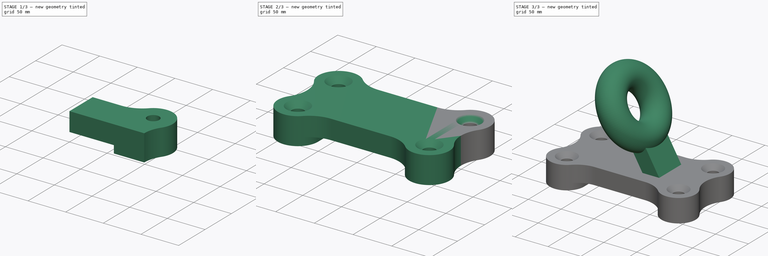
[diagram: build sequence overview — one tinted view per stage of 3, left to right]
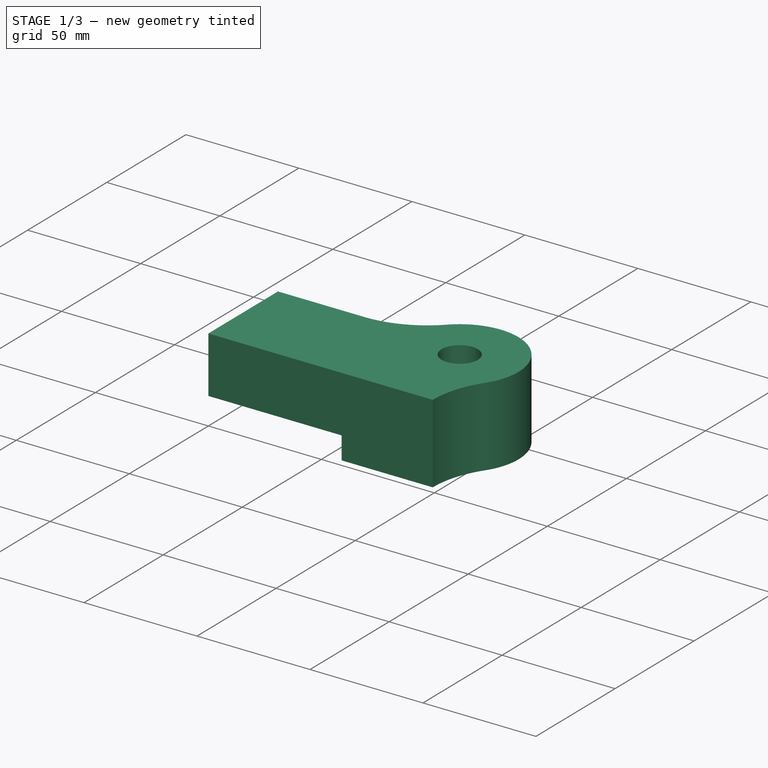
[diagram: stage 1 of 3 — iso view after this stage's code; geometry added in this stage tinted green]
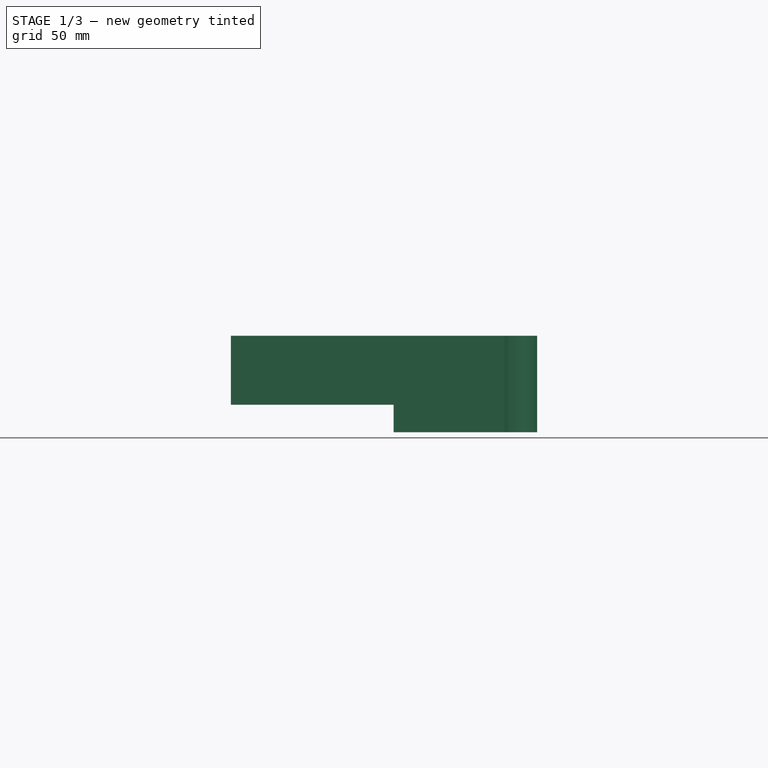
[diagram: stage 1 of 3 — front view after this stage's code; geometry added in this stage tinted green]
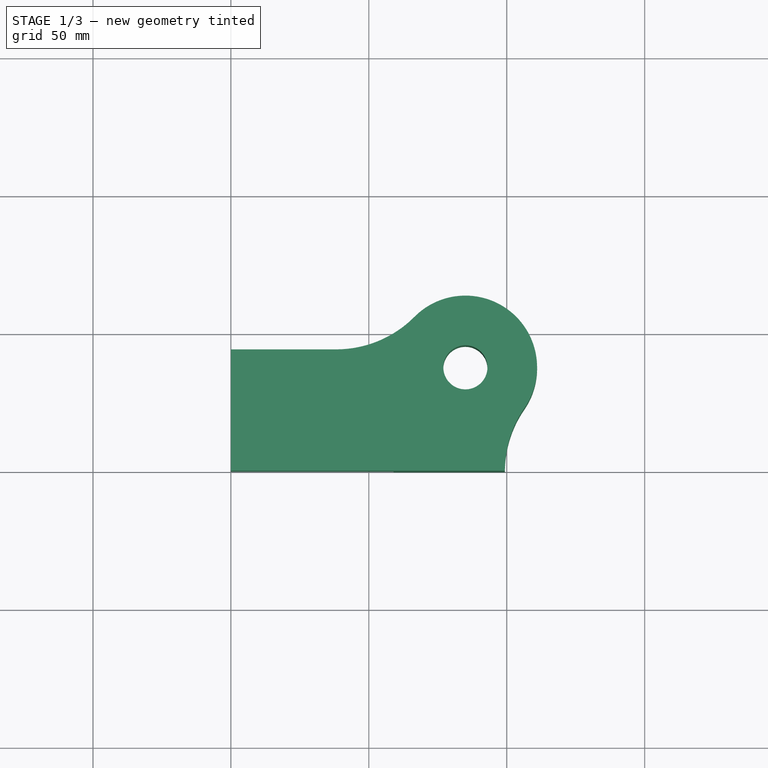
[diagram: stage 1 of 3 — top view after this stage's code; geometry added in this stage tinted green]
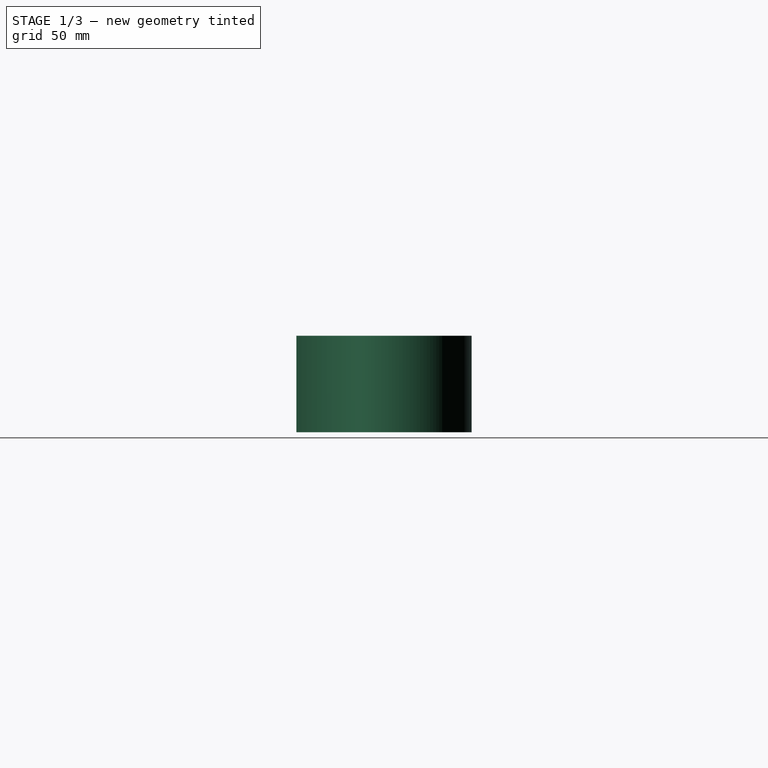
[diagram: stage 1 of 3 — right view after this stage's code; geometry added in this stage tinted green]
FCSTD DOCUMENT  (FreeCAD 1.1R42180 (Git))
Label: 24WC-15-Anchor_Ring
License: Creative Commons Attribution-NonCommercial-ShareAlike 4.0
LicenseURL: https://creativecommons.org/licenses/by-nc-sa/4.0/
objects: Sketcher::SketchObject×5, PartDesign::Pad×2, PartDesign::Mirrored×2, App::Point×1, PartDesign::Pocket×1, PartDesign::MultiTransform×1, PartDesign::Hole×1, PartDesign::Revolution×1, PartDesign::Body×1, App::TextDocument×1
note: 32 computed .brp shape members not serialized (recipe doc carries the construction recipe); baked Part::Feature solids carry a one-line shape summary decoded from their .brp

FEATURE [App::Point] Origin001  label="Origine"
  Role = Origin
FEATURE [Sketcher::SketchObject] Sketch
  ArcFitTolerance = 1e-06
  AttachmentSupport = -> [Origin]
  ExternalTypes = [0]
  FullyConstrained = true
  MakeInternals = false
  MapMode = 5
  expr: Constraints[5] = 170 / 2
  expr: Constraints[6] = 75 / 2
  sketch-geometry (7):
    g0: ArcOfCircle CenterX=139.312 CenterY=0 CenterZ=0 NormalX=0 NormalY=0 NormalZ=1 AngleXU=0 Radius=40 StartAngle=2.5373 EndAngle=3.14159
    g1: ArcOfCircle CenterX=85 CenterY=37.5 CenterZ=0 NormalX=0 NormalY=0 NormalZ=1 AngleXU=0 Radius=26 StartAngle=5.67889 EndAngle=8.643
    g2: ArcOfCircle CenterX=38.1625 CenterY=84 CenterZ=0 NormalX=0 NormalY=0 NormalZ=1 AngleXU=0 Radius=40 StartAngle=4.71239 EndAngle=5.5014
    g3: LineSegment StartX=38.1625 StartY=44 StartZ=0 EndX=0 EndY=44 EndZ=0
    g4: Circle CenterX=85 CenterY=37.5 CenterZ=0 NormalX=0 NormalY=0 NormalZ=1 AngleXU=0 Radius=8
    g5: LineSegment StartX=0 StartY=44 StartZ=0 EndX=0 EndY=0 EndZ=0
    g6: LineSegment StartX=0 StartY=0 StartZ=0 EndX=99.3116 EndY=0 EndZ=0
  constraints (19):
    c: PointOnObject(g0,g-1)
    c: Tangent(g0,g1) = 1.5708
    c: Tangent(g1,g2) = 1.5708
    c: Tangent(g2,g3) = 1.5708
    c: Horizontal(g3)
    c: Distance(g1,g-2) = 85
    c: Distance(g1,g-1) = 37.5
    c: Radius(g1) = 26
    c: Diameter(g4) = 16
    c: Coincident(g4,g1)
    c: Radius(g0) = 40
    c: Equal(g0,g2)
    c: Coincident(g3,g5)
    c: Coincident(g5,g-1)
    c: Vertical(g5)
    c: Coincident(g5,g6)
    c: Coincident(g6,g0)
    c: DistanceY(g5,g5) = 44
    c: Perpendicular(g0,g6)
FEATURE [PartDesign::Pad] Pad
  Direction = (0,0,1)
  Length = 35
  Length2 = 10
  Profile = -> Sketch
  ReferenceAxis = -> Sketch [N_Axis]
  Refine = true
  Suppressed = false
  Type = 0
FEATURE [Sketcher::SketchObject] Sketch001
  ArcFitTolerance = 1e-06
  ExternalGeometry = -> [Pad]
  ExternalTypes = [0,0]
  FullyConstrained = false
  MakeInternals = false
  MapMode = 5
  Placement = pos=(0,0,-7.9e-15) rot=(1,0,0;3.14159rad)
  sketch-geometry (8):
    g0: LineSegment StartX=59 StartY=0 StartZ=0 EndX=59 EndY=-37.5 EndZ=0
    g1: ArcOfCircle CenterX=85 CenterY=-37.5 CenterZ=0 NormalX=0 NormalY=0 NormalZ=1 AngleXU=0 Radius=26 StartAngle=3.14159 EndAngle=6.88748
    g2: ArcOfCircle CenterX=139.312 CenterY=0 CenterZ=0 NormalX=0 NormalY=0 NormalZ=1 AngleXU=0 Radius=40 StartAngle=3.14159 EndAngle=3.74589
    g3: LineSegment StartX=99.3116 StartY=3.779e-13 StartZ=0 EndX=59 EndY=0 EndZ=0
    g4: LineSegment StartX=-35.6688 StartY=30.5975 StartZ=0 EndX=-35.6688 EndY=-116.783 EndZ=0
    g5: LineSegment StartX=-35.6688 StartY=-116.783 StartZ=0 EndX=193.5 EndY=-116.783 EndZ=0
    g6: LineSegment StartX=193.5 StartY=-116.783 StartZ=0 EndX=193.5 EndY=30.5975 EndZ=0
    g7: LineSegment StartX=193.5 StartY=30.5975 StartZ=0 EndX=-35.6688 EndY=30.5975 EndZ=0
  constraints (17):
    c: PointOnObject(g0,g-1)
    c: Vertical(g0)
    c: Tangent(g0,g1) = -1.5708
    c: Tangent(g1,g2) = 1.5708
    c: Coincident(g2,g3)
    c: Coincident(g3,g0)
    c: Coincident(g2,g-3)
    c: Coincident(g1,g-4)
    c: Coincident(g2,g-3)
    c: Coincident(g4,g5)
    c: Coincident(g5,g6)
    c: Coincident(g6,g7)
    c: Coincident(g7,g4)
    c: Vertical(g4)
    c: Vertical(g6)
    c: Horizontal(g5)
    c: Horizontal(g7)
FEATURE [PartDesign::Pocket] Pocket
  BaseFeature = -> Pad
  Direction = (0,0,1)
  Length = 10
  Length2 = 5
  Profile = -> Sketch001
  ReferenceAxis = -> Sketch001 [N_Axis]
  Refine = true
  Suppressed = false
  Type = 0
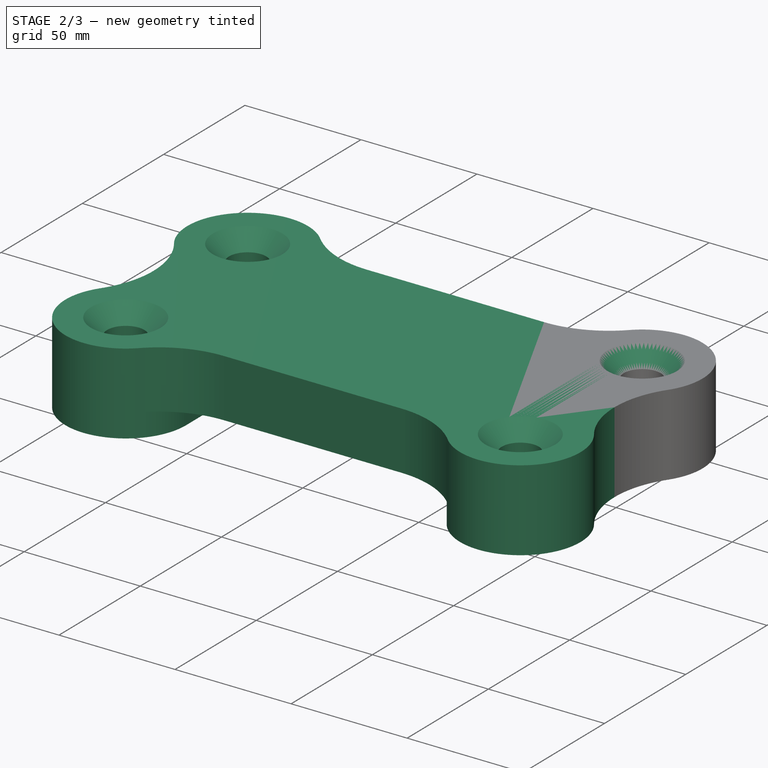
[diagram: stage 2 of 3 — iso view after this stage's code; geometry added in this stage tinted green]
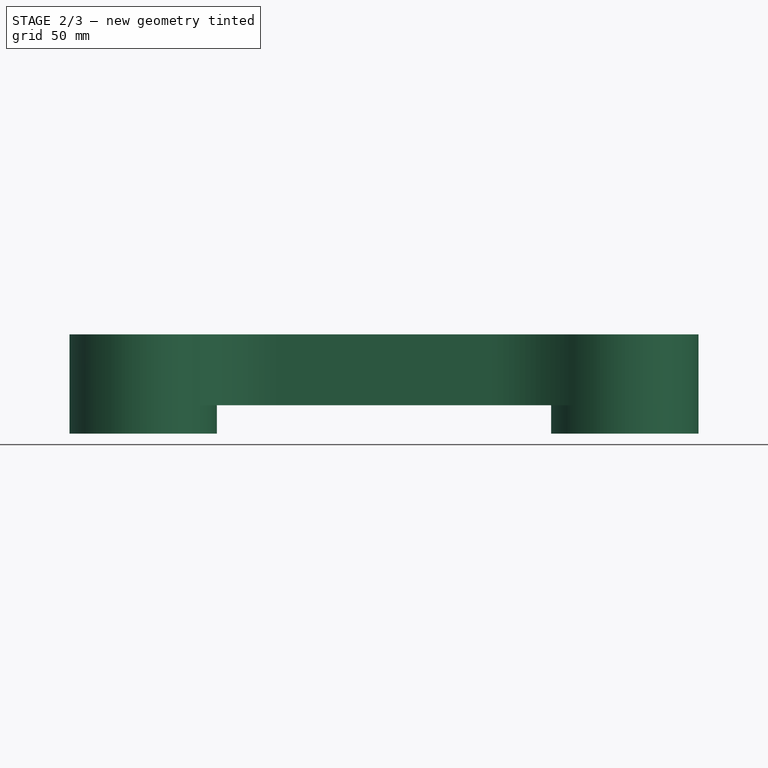
[diagram: stage 2 of 3 — front view after this stage's code; geometry added in this stage tinted green]
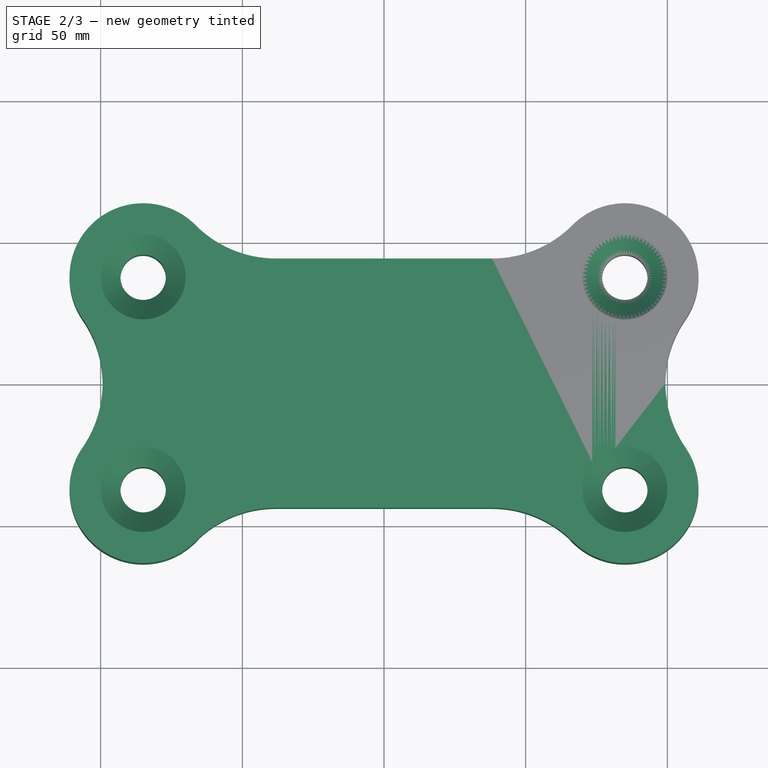
[diagram: stage 2 of 3 — top view after this stage's code; geometry added in this stage tinted green]
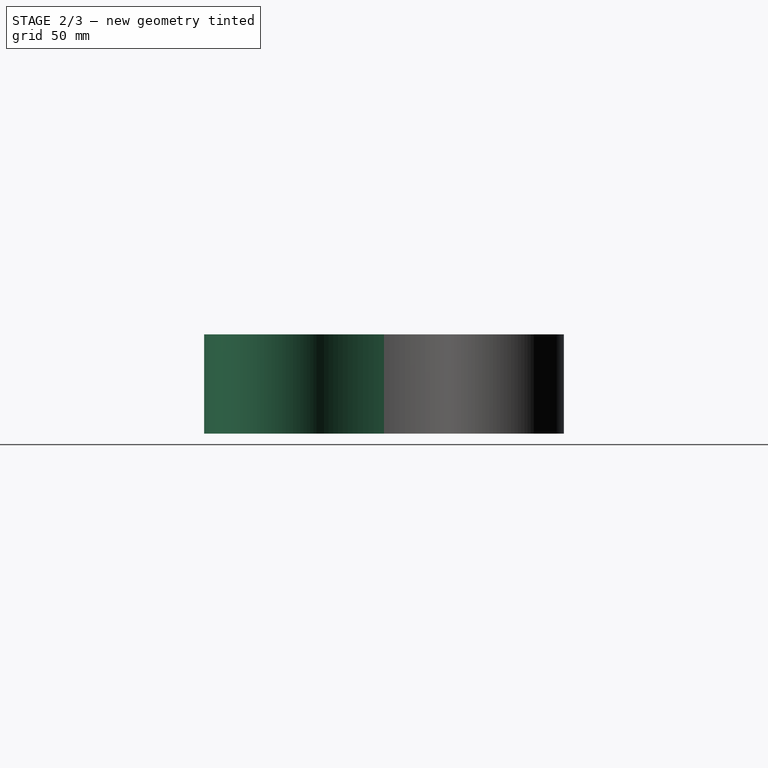
[diagram: stage 2 of 3 — right view after this stage's code; geometry added in this stage tinted green]
FEATURE [PartDesign::Mirrored] Mirrored
  MirrorPlane = -> XZ_Plane
  Refine = true
  Suppressed = false
  TransformMode = 0
FEATURE [PartDesign::Mirrored] Mirrored001
  MirrorPlane = -> Sketch001 [V_Axis]
  Refine = true
  Suppressed = false
  TransformMode = 0
FEATURE [PartDesign::MultiTransform] MultiTransform
  BaseFeature = -> Pocket
  Originals = -> [Pocket]
  Refine = true
  Suppressed = false
  TransformMode = 1
  Transformations = -> [Mirrored,Mirrored001]
FEATURE [PartDesign::Hole] Hole
  BaseFeature = -> MultiTransform
  BaseProfileType = 7
  CustomThreadClearance = 0
  Depth = 100
  DepthType = 0
  Diameter = 16
  DrillForDepth = false
  DrillPoint = 1
  DrillPointAngle = 118
  HoleCutCountersinkAngle = 90
  HoleCutCustomValues = false
  HoleCutDepth = 15
  HoleCutDiameter = 30
  HoleCutType = 2
  ModelThread = false
  Profile = -> MultiTransform [Edge55,Edge54,Edge53,Edge56]
  Refine = true
  Suppressed = false
  Tapered = false
  TaperedAngle = 90
  ThreadClass = 0
  ThreadDepth = 100
  ThreadDepthType = 0
  ThreadDiameter = 16
  ThreadDirection = 0
  ThreadFit = 0
  ThreadSize = 0
  ThreadType = 0
  Threaded = false
  UseCustomThreadClearance = false
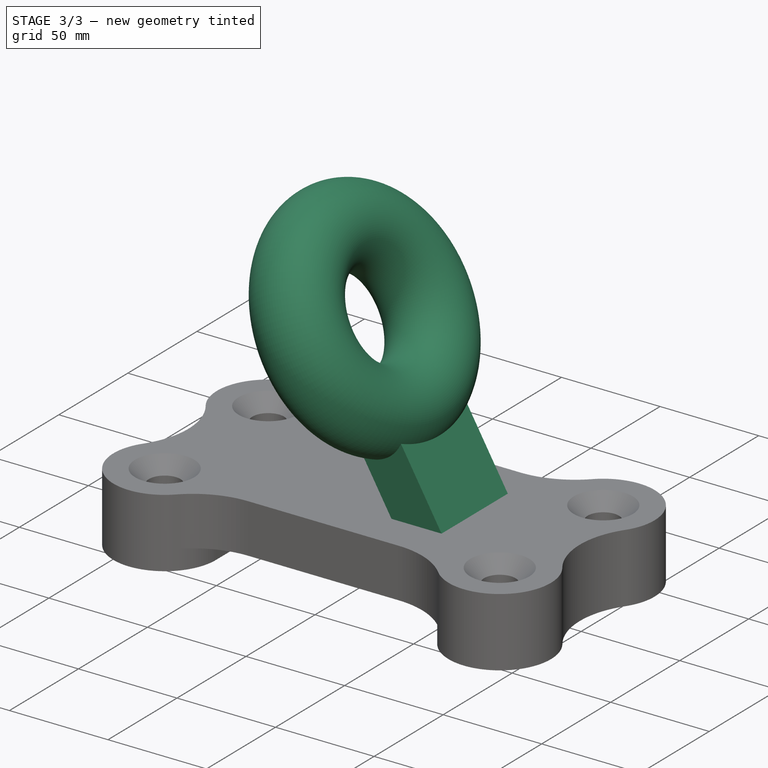
[diagram: stage 3 of 3 — iso view after this stage's code; geometry added in this stage tinted green]
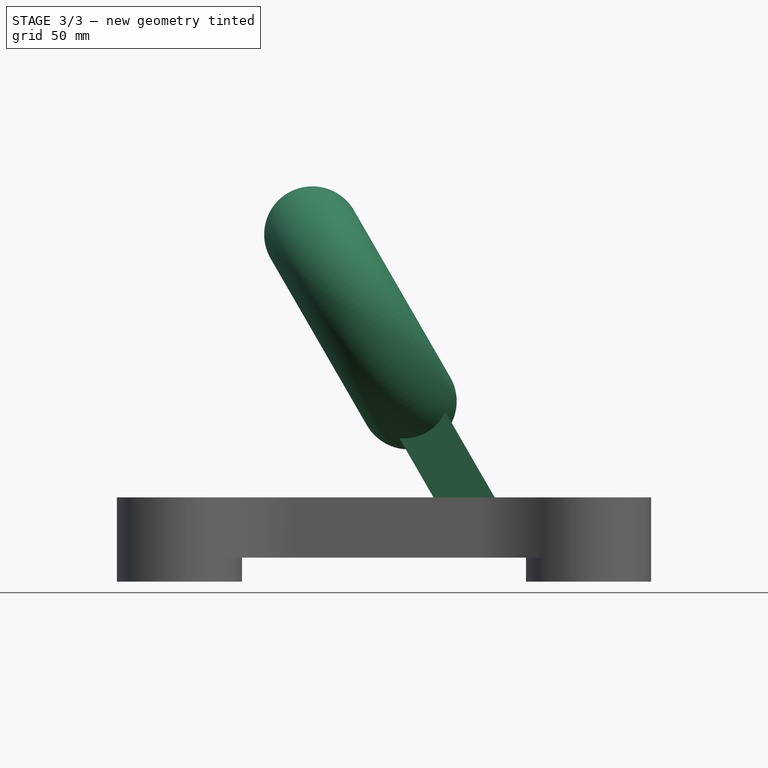
[diagram: stage 3 of 3 — front view after this stage's code; geometry added in this stage tinted green]
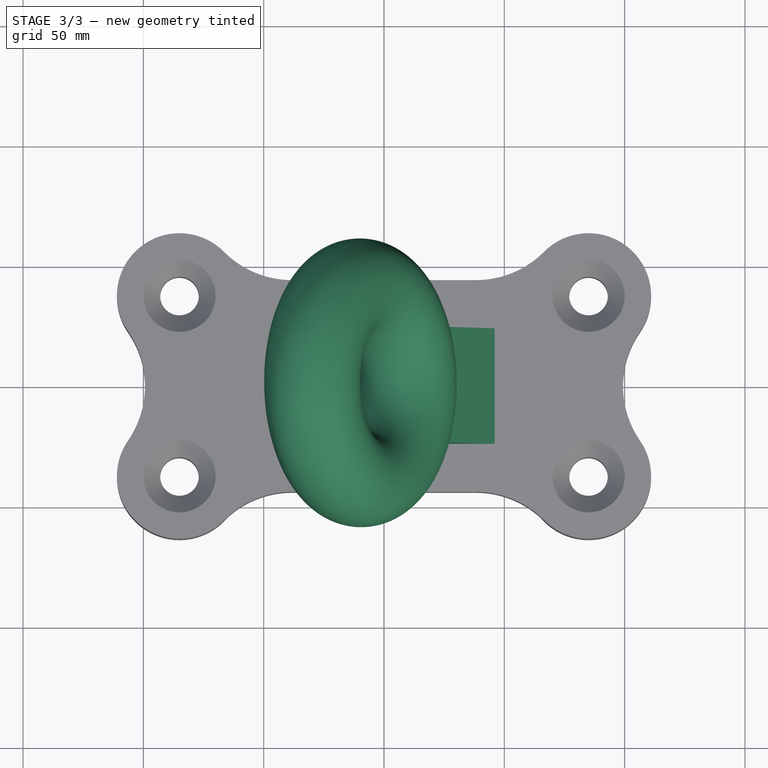
[diagram: stage 3 of 3 — top view after this stage's code; geometry added in this stage tinted green]
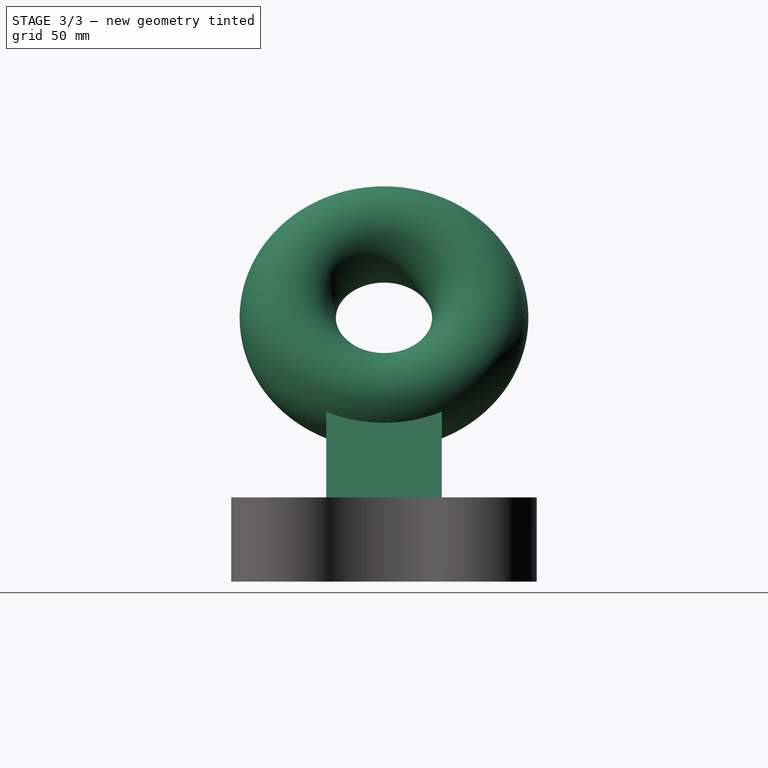
[diagram: stage 3 of 3 — right view after this stage's code; geometry added in this stage tinted green]
FEATURE [Sketcher::SketchObject] Sketch002
  ArcFitTolerance = 1e-06
  AttachmentSupport = -> [Origin]
  ExternalGeometry = -> [Hole]
  ExternalTypes = [0]
  FullyConstrained = true
  MakeInternals = false
  MapMode = 5
  Placement = pos=(0,0,0) rot=(1,0,0;1.5708rad)
  sketch-geometry (6):
    g0: LineSegment [constr] StartX=46 StartY=35 StartZ=0 EndX=85 EndY=35 EndZ=0
    g1: LineSegment StartX=46 StartY=35 StartZ=0 EndX=19.7306 EndY=80.5 EndZ=0
    g2: LineSegment StartX=19.7306 StartY=80.5 StartZ=0 EndX=0.678004 EndY=69.5 EndZ=0
    g3: LineSegment StartX=0.678004 StartY=69.5 StartZ=0 EndX=20.5966 EndY=35 EndZ=0
    g4: LineSegment StartX=20.5966 StartY=35 StartZ=0 EndX=46 EndY=35 EndZ=0
    g5: Circle [constr] CenterX=10.2043 CenterY=75 CenterZ=0 NormalX=0 NormalY=0 NormalZ=1 AngleXU=0 Radius=20
  constraints (16):
    c: Symmetric(g-3,g-3,g0)
    c: Horizontal(g0)
    c: DistanceX(g0,g0) = 39
    c: Coincident(g0,g1)
    c: Coincident(g1,g2)
    c: Coincident(g2,g3)
    c: Coincident(g3,g4)
    c: Coincident(g4,g1)
    c: Horizontal(g4)
    c: Angle(g3,g-1) = 1.0472
    c: Perpendicular(g1,g2)
    c: Perpendicular(g2,g3)
    c: Distance(g2,g2) = 22
    c: Diameter(g5) = 40
    c: Symmetric(g2,g2,g5)
    c: Distance(g5,g-1) = 75
FEATURE [PartDesign::Pad] Pad001
  BaseFeature = -> Hole
  Direction = (0,-1,2e-16)
  Length = 48
  Length2 = 10
  Midplane = true
  Profile = -> Sketch002
  ReferenceAxis = -> Sketch002 [N_Axis]
  Refine = true
  Suppressed = false
  Type = 0
FEATURE [Sketcher::SketchObject] Sketch003
  ArcFitTolerance = 1e-06
  AttachmentSupport = -> [Origin]
  ExternalGeometry = -> [Sketch002]
  ExternalTypes = [0]
  FullyConstrained = true
  MakeInternals = false
  MapMode = 5
  Placement = pos=(0,0,0) rot=(1,0,0;1.5708rad)
  sketch-geometry (1):
    g0: Circle CenterX=10.2043 CenterY=75 CenterZ=0 NormalX=0 NormalY=0 NormalZ=1 AngleXU=0 Radius=20
  constraints (2):
    c: Diameter(g0) = 40
    c: Symmetric(g-3,g-3,g0)
FEATURE [Sketcher::SketchObject] Sketch004
  ArcFitTolerance = 1e-06
  AttachmentSupport = -> [Origin]
  ExternalGeometry = -> [Sketch002,Sketch003]
  ExternalTypes = [0,0]
  FullyConstrained = true
  MakeInternals = false
  MapMode = 5
  Placement = pos=(0,0,0) rot=(1,0,0;1.5708rad)
  sketch-geometry (4):
    g0: LineSegment [constr] StartX=20.2043 StartY=57.6795 StartZ=0 EndX=-39.7957 EndY=161.603 EndZ=0
    g1: Circle [constr] CenterX=-29.7957 CenterY=144.282 CenterZ=0 NormalX=0 NormalY=0 NormalZ=1 AngleXU=0 Radius=20
    g2: LineSegment StartX=33.5056 StartY=134.641 StartZ=0 EndX=-53.097 EndY=84.641 EndZ=0
    g3: GeomPoint X=-9.79572 Y=109.641 Z=0
  constraints (11):
    c: PointOnObject(g1,g0)
    c: PointOnObject(g0,g1)
    c: Equal(g-4,g1)
    c: PointOnObject(g-4,g0)
    c: Perpendicular(g0,g-3)
    c: PointOnObject(g0,g-4)
    c: Distance(g0,g0) = 120
    c: Symmetric(g0,g0,g3)
    c: Symmetric(g2,g2,g3)
    c: Perpendicular(g0,g2)
    c: Distance(g2,g2) = 100
FEATURE [PartDesign::Revolution] Revolution
  Angle = 360
  Angle2 = 60
  Axis = (-0.866025,-1e-16,-0.5)
  Base = (33.5056,2.99e-14,134.641)
  BaseFeature = -> Pad001
  Profile = -> Sketch003 [Edge1]
  ReferenceAxis = -> Sketch004 [Edge1]
  Refine = true
  Reversed = true
  Suppressed = false
  Type = 0
FEATURE [PartDesign::Body] Body  label="Corps"
  AllowCompound = true
  Group = -> [Sketch,Pad,Sketch001,Pocket,MultiTransform,Mirrored,Mirrored001,Hole,Sketch002,Pad001,Sketch003,Sketch004,Revolution]
  Origin = -> Origin
  Tip = -> Revolution
FEATURE [App::TextDocument] Text_document  label="README"
  Text = https://www.youtube.com/watch?v=woclHUDXoec\n\n7800 kg/m3\n\n7,5341 kg GOOD!
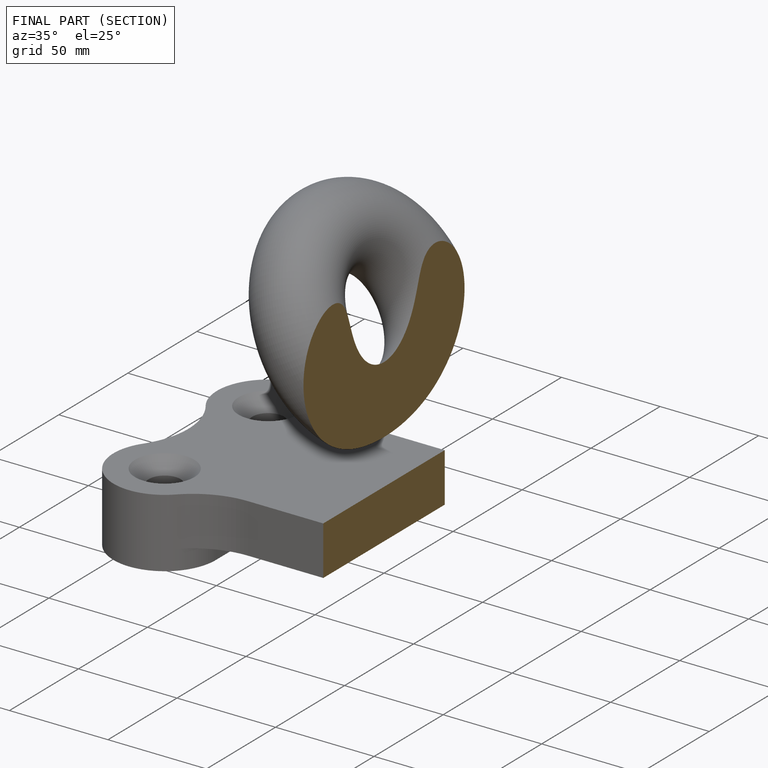
[diagram: finished part — half-section view (interior)]
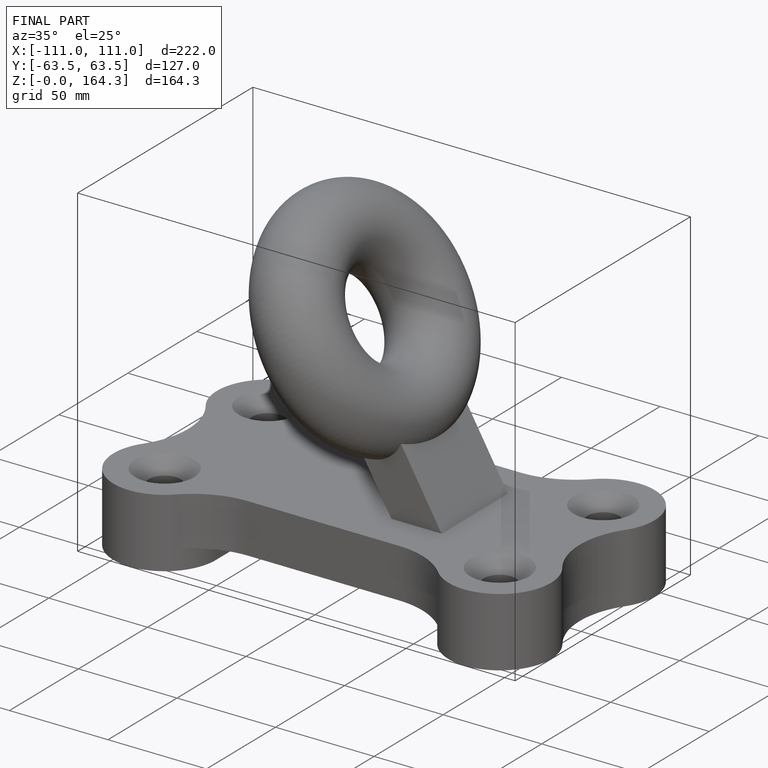
[diagram: finished part — iso view with bounding-box wireframe]
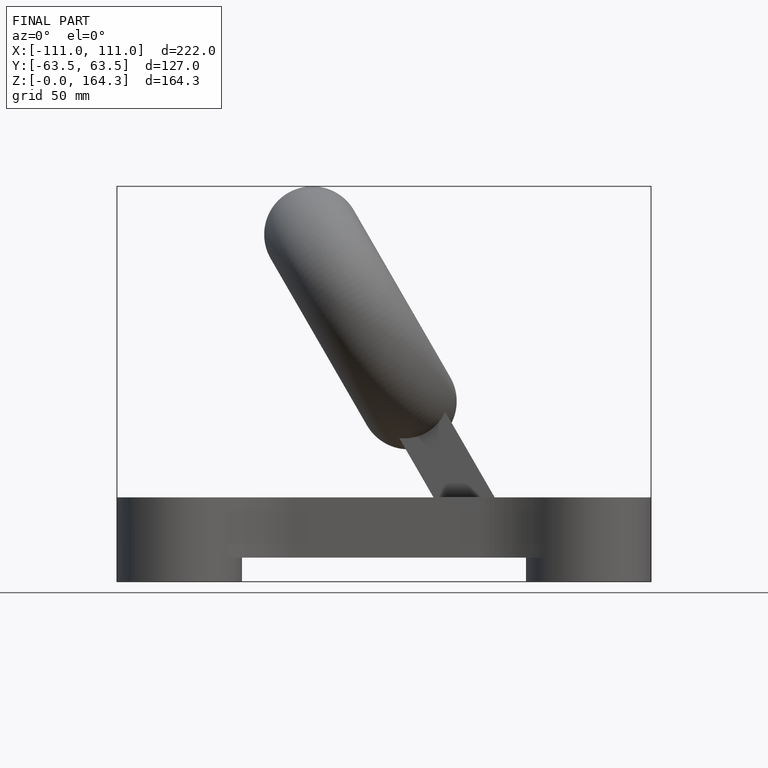
[diagram: finished part — front view with bounding-box wireframe]
